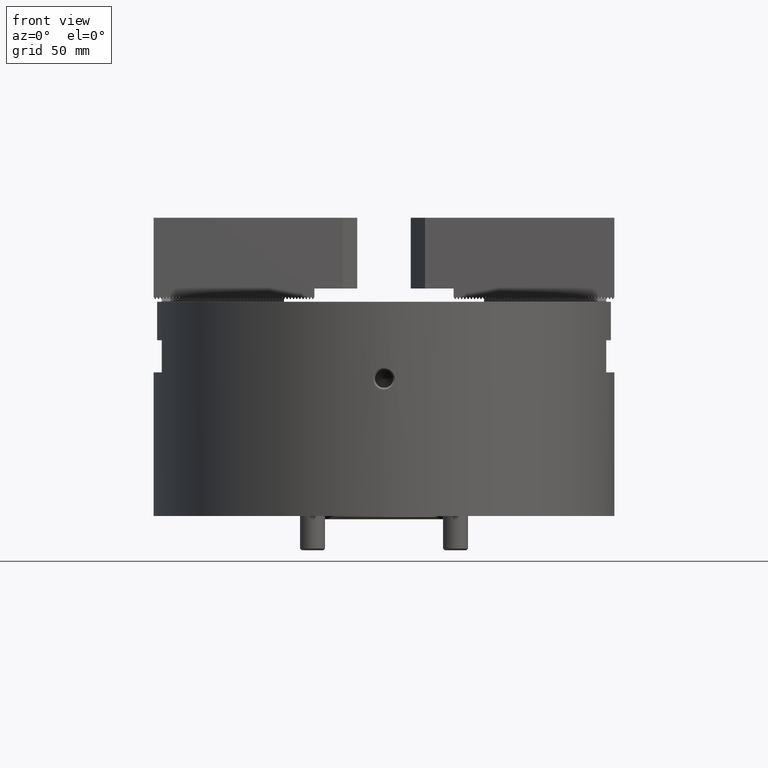
[diagram: clean part render]
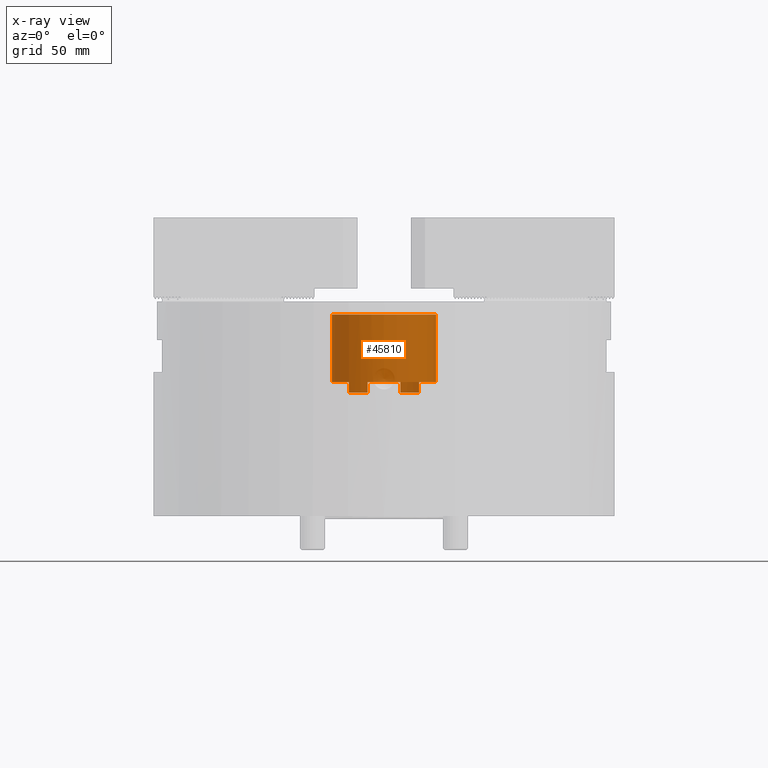
[diagram: x-ray — body ghosted, one internal face saturated and labeled with its STEP entity id]
A machine part, front view, then the same camera in x-ray: the body is ghosted and one INTERNAL B-rep face — a face not visible from any outside direction — is saturated and labeled: STEP entity #45810.
In plain terms, the highlighted cylindrical surface (bore or boss wall) has radius 24.5 mm, axis along (0, 0, -1).
Its self-contained STEP definition (entity closure, byte-faithful):
#1110=CYLINDRICAL_SURFACE('',#48935,24.5);
#1266=CIRCLE('',#46329,24.5);
#1283=CIRCLE('',#46357,24.5);
#1285=CIRCLE('',#46364,24.5);
#1287=CIRCLE('',#46367,24.5);
#1821=CIRCLE('',#48921,24.5);
#15011=ORIENTED_EDGE('',*,*,#22005,.T.);
#15012=ORIENTED_EDGE('',*,*,#16195,.T.);
#15013=ORIENTED_EDGE('',*,*,#16175,.T.);
#15014=ORIENTED_EDGE('',*,*,#16182,.T.);
#15015=ORIENTED_EDGE('',*,*,#16185,.T.);
#15016=ORIENTED_EDGE('',*,*,#16179,.T.);
#15017=ORIENTED_EDGE('',*,*,#16158,.T.);
#15018=ORIENTED_EDGE('',*,*,#16192,.T.);
#15019=ORIENTED_EDGE('',*,*,#16189,.T.);
#16158=EDGE_CURVE('',#22717,#22719,#1266,.T.);
#16175=EDGE_CURVE('',#22734,#22736,#1283,.T.);
#16179=EDGE_CURVE('',#22738,#22717,#26942,.T.);
#16182=EDGE_CURVE('',#22736,#22740,#26945,.T.);
#16185=EDGE_CURVE('',#22740,#22738,#1285,.T.);
#16189=EDGE_CURVE('',#22741,#22744,#1287,.T.);
#16192=EDGE_CURVE('',#22719,#22741,#26951,.T.);
#16195=EDGE_CURVE('',#22744,#22734,#26954,.T.);
#22005=EDGE_CURVE('',#26314,#26314,#1821,.T.);
#22717=VERTEX_POINT('',#65104);
#22719=VERTEX_POINT('',#65108);
#22734=VERTEX_POINT('',#65149);
#22736=VERTEX_POINT('',#65153);
#22738=VERTEX_POINT('',#65160);
#22740=VERTEX_POINT('',#65168);
#22741=VERTEX_POINT('',#65176);
#22744=VERTEX_POINT('',#65181);
#26314=VERTEX_POINT('',#76264);
#26942=LINE('',#65163,#32475);
#26945=LINE('',#65169,#32478);
#26951=LINE('',#65186,#32484);
#26954=LINE('',#65190,#32487);
#32475=VECTOR('',#50411,1000.);
#32478=VECTOR('',#50416,1000.);
#32484=VECTOR('',#50436,1000.);
#32487=VECTOR('',#50441,1000.);
#39698=EDGE_LOOP('',(#15011));
#39699=EDGE_LOOP('',(#15012,#15013,#15014,#15015,#15016,#15017,#15018,#15019));
#42097=FACE_BOUND('',#39698,.T.);
#42098=FACE_BOUND('',#39699,.T.);
#45810=ADVANCED_FACE('',(#42097,#42098),#1110,.T.);
#46329=AXIS2_PLACEMENT_3D('',#65109,#50344,#50345);
#46357=AXIS2_PLACEMENT_3D('',#65154,#50400,#50401);
#46364=AXIS2_PLACEMENT_3D('',#65173,#50422,#50423);
#46367=AXIS2_PLACEMENT_3D('',#65182,#50430,#50431);
#48921=AXIS2_PLACEMENT_3D('',#76263,#60480,#60481);
#48935=AXIS2_PLACEMENT_3D('',#76295,#60524,#60525);
#50344=DIRECTION('',(0.,0.,1.));
#50345=DIRECTION('',(-0.5,-0.866025403784438,0.));
#50400=DIRECTION('',(0.,0.,1.));
#50401=DIRECTION('',(-0.5,-0.866025403784438,0.));
#50411=DIRECTION('',(0.,0.,1.));
#50416=DIRECTION('',(0.,0.,-1.));
#50422=DIRECTION('',(0.,0.,1.));
#50423=DIRECTION('',(-0.5,-0.866025403784438,0.));
#50430=DIRECTION('',(0.,0.,1.));
#50431=DIRECTION('',(-0.5,-0.866025403784438,0.));
#50436=DIRECTION('',(0.,0.,-1.));
#50441=DIRECTION('',(0.,0.,1.));
#60480=DIRECTION('',(0.,0.,-1.));
#60481=DIRECTION('',(0.,-1.,0.));
#60524=DIRECTION('',(0.,0.,-1.));
#60525=DIRECTION('',(0.,-1.,0.));
#65104=CARTESIAN_POINT('',(-7.66205793628927,-23.2710736361893,-37.5));
#65108=CARTESIAN_POINT('',(16.3223119741336,18.2710736361893,-37.5));
#65109=CARTESIAN_POINT('',(0.,0.,-37.5));
#65149=CARTESIAN_POINT('',(7.66205793628927,23.2710736361893,-37.5));
#65153=CARTESIAN_POINT('',(-16.3223119741337,-18.2710736361893,-37.5));
#65154=CARTESIAN_POINT('',(0.,0.,-37.5));
#65160=CARTESIAN_POINT('',(-7.66205793628927,-23.2710736361893,-42.5));
#65163=CARTESIAN_POINT('',(-7.66205793628927,-23.2710736361893,-101.5));
#65168=CARTESIAN_POINT('',(-16.3223119741337,-18.2710736361893,-42.5));
#65169=CARTESIAN_POINT('',(-16.3223119741337,-18.2710736361893,-101.5));
#65173=CARTESIAN_POINT('',(0.,0.,-42.5));
#65176=CARTESIAN_POINT('',(16.3223119741337,18.2710736361893,-42.5));
#65181=CARTESIAN_POINT('',(7.66205793628927,23.2710736361893,-42.5));
#65182=CARTESIAN_POINT('',(0.,0.,-42.5));
#65186=CARTESIAN_POINT('',(16.3223119741337,18.2710736361893,-101.5));
#65190=CARTESIAN_POINT('',(7.66205793628927,23.2710736361893,-101.5));
#76263=CARTESIAN_POINT('',(-2.34290668463256E-14,0.,-6.00000000000001));
#76264=CARTESIAN_POINT('',(-2.34290668463256E-14,-24.5,-6.00000000000001));
#76295=CARTESIAN_POINT('',(-2.34290668463256E-14,0.,-52.));